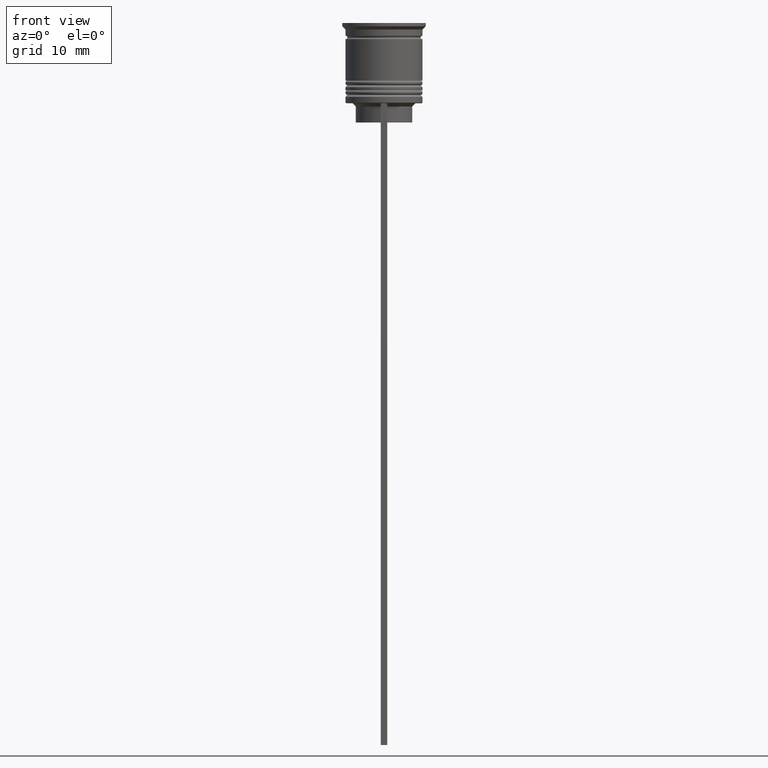
[diagram: clean part render]
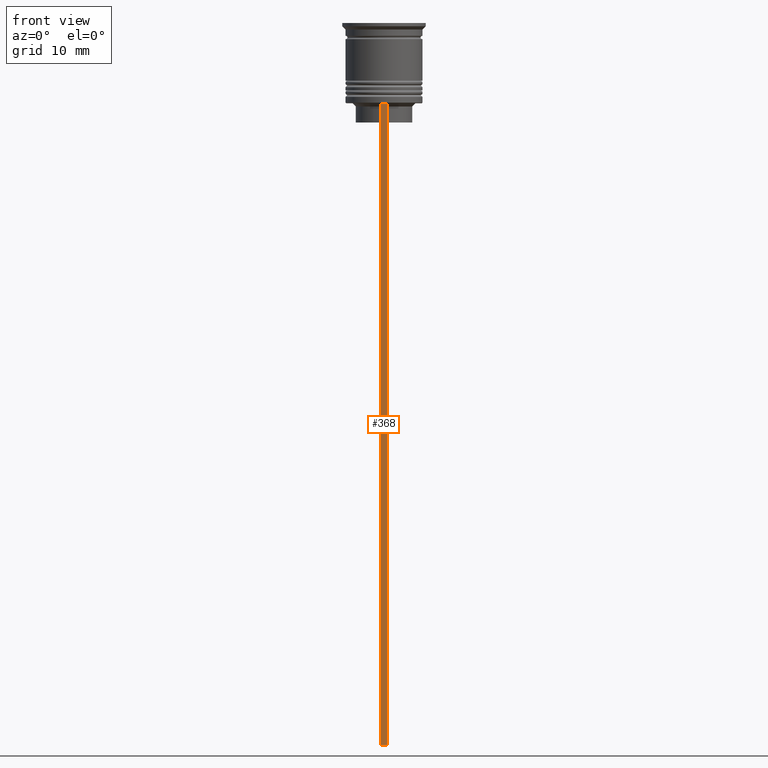
[diagram: same view with one face highlighted and labeled with its STEP entity id]
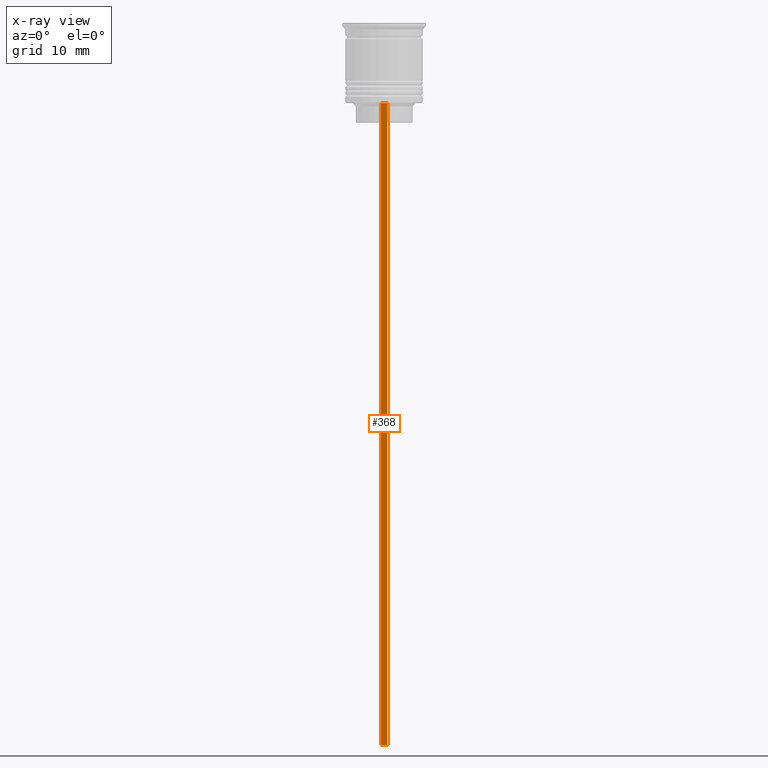
[diagram: x-ray of the same camera — body ghosted, the highlighted face saturated]
A machine part, front view. The second image highlights one B-rep face of the part: STEP entity #368.
The next image is the same camera in x-ray: the body ghosted, the highlighted face saturated — about 0% of this face is hidden behind the body in this view.
In plain terms, the highlighted planar face has unit normal (0, -1, -0).
Its self-contained STEP definition (entity closure, byte-faithful):
#42 = DIRECTION ( 'NONE',  ( -1.000000000000000000, 0.000000000000000000, 0.000000000000000000 ) ) ;
#80 = CARTESIAN_POINT ( 'NONE',  ( 0.5000000000000002220, -6.000000000000000000, -12.50000000000000000 ) ) ;
#88 = DIRECTION ( 'NONE',  ( 0.000000000000000000, 0.000000000000000000, -1.000000000000000000 ) ) ;
#160 = ORIENTED_EDGE ( 'NONE', *, *, #843, .F. ) ;
#176 = VECTOR ( 'NONE', #1313, 1000.000000000000000 ) ;
#190 = VERTEX_POINT ( 'NONE', #80 ) ;
#331 = VERTEX_POINT ( 'NONE', #2102 ) ;
#368 = ADVANCED_FACE ( 'NONE', ( #2480 ), #752, .T. ) ;
#382 = DIRECTION ( 'NONE',  ( 0.000000000000000000, -1.000000000000000000, -0.000000000000000000 ) ) ;
#424 = LINE ( 'NONE', #1051, #1982 ) ;
#567 = CARTESIAN_POINT ( 'NONE',  ( 0.5000000000000002220, -6.000000000000000000, -112.5000000000000000 ) ) ;
#570 = AXIS2_PLACEMENT_3D ( 'NONE', #2286, #382, #1908 ) ;
#592 = LINE ( 'NONE', #1187, #779 ) ;
#652 = ORIENTED_EDGE ( 'NONE', *, *, #1714, .F. ) ;
#752 = PLANE ( 'NONE',  #570 ) ;
#779 = VECTOR ( 'NONE', #1400, 1000.000000000000000 ) ;
#812 = LINE ( 'NONE', #2350, #2464 ) ;
#843 = EDGE_CURVE ( 'NONE', #1688, #2250, #812, .T. ) ;
#930 = LINE ( 'NONE', #1162, #176 ) ;
#1051 = CARTESIAN_POINT ( 'NONE',  ( 0.5000000000000002220, -6.000000000000000000, -0.4584054212077061097 ) ) ;
#1123 = CARTESIAN_POINT ( 'NONE',  ( -0.4999999999999997780, -6.000000000000000000, -112.5000000000000000 ) ) ;
#1162 = CARTESIAN_POINT ( 'NONE',  ( 0.5000000000000002220, -6.000000000000000000, -12.50000000000000000 ) ) ;
#1180 = ORIENTED_EDGE ( 'NONE', *, *, #1964, .F. ) ;
#1187 = CARTESIAN_POINT ( 'NONE',  ( -0.4999999999999997780, -6.000000000000000000, -0.4584054212077061097 ) ) ;
#1313 = DIRECTION ( 'NONE',  ( 1.000000000000000000, 0.000000000000000000, 0.000000000000000000 ) ) ;
#1400 = DIRECTION ( 'NONE',  ( 0.000000000000000000, 0.000000000000000000, -1.000000000000000000 ) ) ;
#1688 = VERTEX_POINT ( 'NONE', #567 ) ;
#1714 = EDGE_CURVE ( 'NONE', #331, #190, #930, .T. ) ;
#1908 = DIRECTION ( 'NONE',  ( 0.000000000000000000, 0.000000000000000000, -1.000000000000000000 ) ) ;
#1964 = EDGE_CURVE ( 'NONE', #190, #1688, #424, .T. ) ;
#1982 = VECTOR ( 'NONE', #88, 1000.000000000000000 ) ;
#2102 = CARTESIAN_POINT ( 'NONE',  ( -0.4999999999999997780, -6.000000000000000000, -12.50000000000000000 ) ) ;
#2250 = VERTEX_POINT ( 'NONE', #1123 ) ;
#2267 = EDGE_CURVE ( 'NONE', #331, #2250, #592, .T. ) ;
#2286 = CARTESIAN_POINT ( 'NONE',  ( 0.5000000000000002220, -6.000000000000000000, -0.4584054212077061097 ) ) ;
#2328 = ORIENTED_EDGE ( 'NONE', *, *, #2267, .T. ) ;
#2350 = CARTESIAN_POINT ( 'NONE',  ( 0.5000000000000002220, -6.000000000000000000, -112.5000000000000000 ) ) ;
#2464 = VECTOR ( 'NONE', #42, 1000.000000000000000 ) ;
#2480 = FACE_OUTER_BOUND ( 'NONE', #2489, .T. ) ;
#2489 = EDGE_LOOP ( 'NONE', ( #652, #2328, #160, #1180 ) ) ;